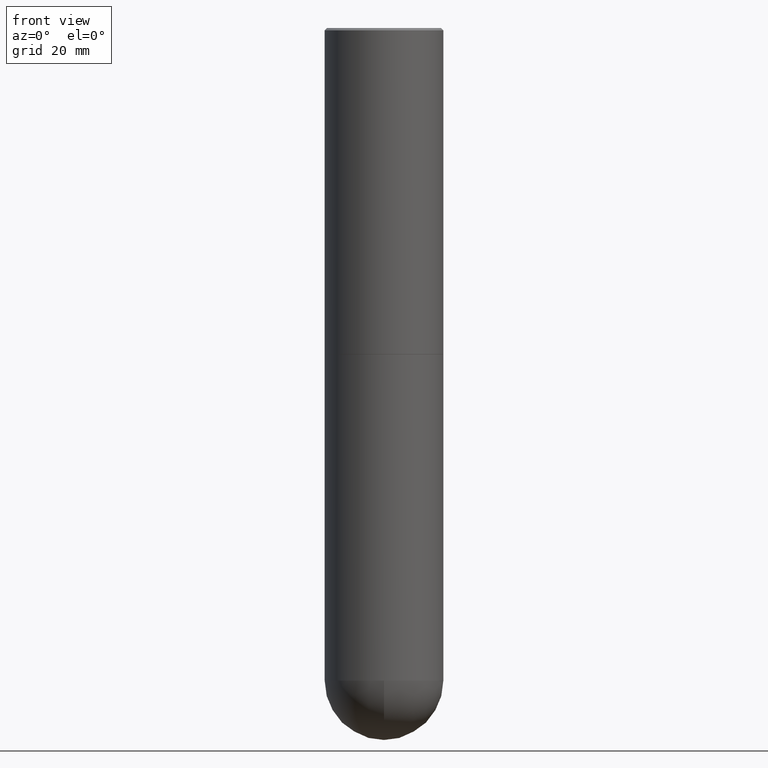
[diagram: clean part render]
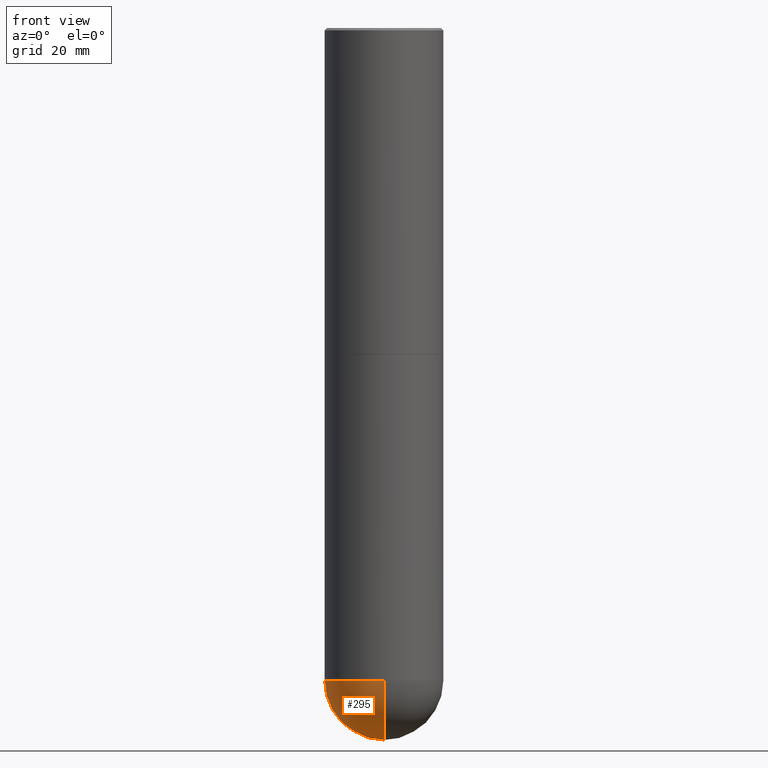
[diagram: same view with one face highlighted and labeled with its STEP entity id]
A machine part, front view. The second image highlights one B-rep face of the part: STEP entity #295.
In plain terms, the highlighted spherical surface has radius 12.7 mm.
Its self-contained STEP definition (entity closure, byte-faithful):
#6 = CARTESIAN_POINT ( 'NONE',  ( 3.491481338843265489E-15, 0.4999999999999805711, -5.500000000000002665 ) ) ;
#8 = ORIENTED_EDGE ( 'NONE', *, *, #305, .F. ) ;
#10 = VERTEX_POINT ( 'NONE', #6 ) ;
#19 = EDGE_CURVE ( 'NONE', #197, #299, #345, .T. ) ;
#23 = CARTESIAN_POINT ( 'NONE',  ( -0.5000000000000000000, -1.084964684392748096E-14, -5.500000000000000888 ) ) ;
#30 = CARTESIAN_POINT ( 'NONE',  ( -3.552713678800368006E-15, -0.5000000000000194289, -5.499999999999999112 ) ) ;
#34 = SPHERICAL_SURFACE ( 'NONE', #341, 0.5000000000000000000 ) ;
#37 = ORIENTED_EDGE ( 'NONE', *, *, #233, .T. ) ;
#38 = CARTESIAN_POINT ( 'NONE',  ( 1.311895865610436840E-28, -1.967732973177735475E-14, -5.500000000000000888 ) ) ;
#48 = EDGE_CURVE ( 'NONE', #313, #10, #59, .T. ) ;
#59 = CIRCLE ( 'NONE', #208, 0.5000000000000000000 ) ;
#95 = EDGE_LOOP ( 'NONE', ( #188, #37, #297, #8 ) ) ;
#111 = CIRCLE ( 'NONE', #150, 0.5000000000000000000 ) ;
#116 = CARTESIAN_POINT ( 'NONE',  ( 1.311895865610436840E-28, -1.967732973177735475E-14, -5.500000000000000888 ) ) ;
#121 = DIRECTION ( 'NONE',  ( -1.000000000000000000, 7.105427357601001070E-15, -4.926315508542082329E-29 ) ) ;
#123 = AXIS2_PLACEMENT_3D ( 'NONE', #116, #121, #353 ) ;
#126 = DIRECTION ( 'NONE',  ( -2.445468806185136597E-29, 3.491481338843145583E-15, 1.000000000000000000 ) ) ;
#150 = AXIS2_PLACEMENT_3D ( 'NONE', #160, #126, #322 ) ;
#152 = AXIS2_PLACEMENT_3D ( 'NONE', #362, #288, #159 ) ;
#159 = DIRECTION ( 'NONE',  ( 1.000000000000000000, -6.982962677686270655E-15, 0.000000000000000000 ) ) ;
#160 = CARTESIAN_POINT ( 'NONE',  ( 1.345007843401825128E-28, -1.920314736363730603E-14, -5.500000000000000888 ) ) ;
#188 = ORIENTED_EDGE ( 'NONE', *, *, #48, .F. ) ;
#190 = FACE_OUTER_BOUND ( 'NONE', #95, .T. ) ;
#197 = VERTEX_POINT ( 'NONE', #23 ) ;
#203 = CARTESIAN_POINT ( 'NONE',  ( 1.311895865610436840E-28, -1.967732973177735475E-14, -5.500000000000000888 ) ) ;
#208 = AXIS2_PLACEMENT_3D ( 'NONE', #203, #273, #399 ) ;
#233 = EDGE_CURVE ( 'NONE', #313, #299, #241, .T. ) ;
#241 = CIRCLE ( 'NONE', #123, 0.5000000000000000000 ) ;
#257 = DIRECTION ( 'NONE',  ( 6.982962677686265922E-15, 1.000000000000000000, -4.370956789862821150E-15 ) ) ;
#273 = DIRECTION ( 'NONE',  ( 1.000000000000000000, -6.982962677686265922E-15, 4.883557194083112340E-29 ) ) ;
#288 = DIRECTION ( 'NONE',  ( -2.445468806185136597E-29, 3.491481338843145583E-15, 1.000000000000000000 ) ) ;
#289 = DIRECTION ( 'NONE',  ( -1.000000000000000000, 6.982962677686265922E-15, -4.883557194083113462E-29 ) ) ;
#295 = ADVANCED_FACE ( 'NONE', ( #190 ), #34, .T. ) ;
#297 = ORIENTED_EDGE ( 'NONE', *, *, #19, .F. ) ;
#299 = VERTEX_POINT ( 'NONE', #30 ) ;
#305 = EDGE_CURVE ( 'NONE', #10, #197, #111, .T. ) ;
#313 = VERTEX_POINT ( 'NONE', #361 ) ;
#322 = DIRECTION ( 'NONE',  ( 1.000000000000000000, -6.982962677686270655E-15, 0.000000000000000000 ) ) ;
#341 = AXIS2_PLACEMENT_3D ( 'NONE', #38, #289, #257 ) ;
#345 = CIRCLE ( 'NONE', #152, 0.5000000000000000000 ) ;
#353 = DIRECTION ( 'NONE',  ( -7.105427357601001070E-15, -1.000000000000000000, 0.000000000000000000 ) ) ;
#361 = CARTESIAN_POINT ( 'NONE',  ( 1.436307221642642085E-28, -2.139245423122024710E-14, -6.000000000000000888 ) ) ;
#362 = CARTESIAN_POINT ( 'NONE',  ( 1.345007843401825128E-28, -1.920314736363730603E-14, -5.500000000000000888 ) ) ;
#399 = DIRECTION ( 'NONE',  ( 6.982962677686265922E-15, 1.000000000000000000, 0.000000000000000000 ) ) ;